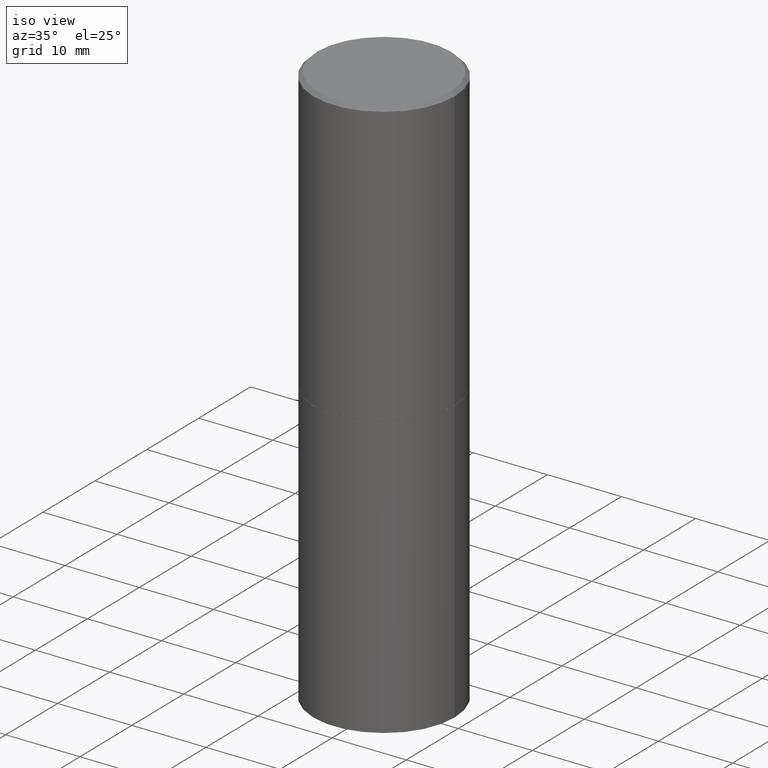
[diagram: clean part render]
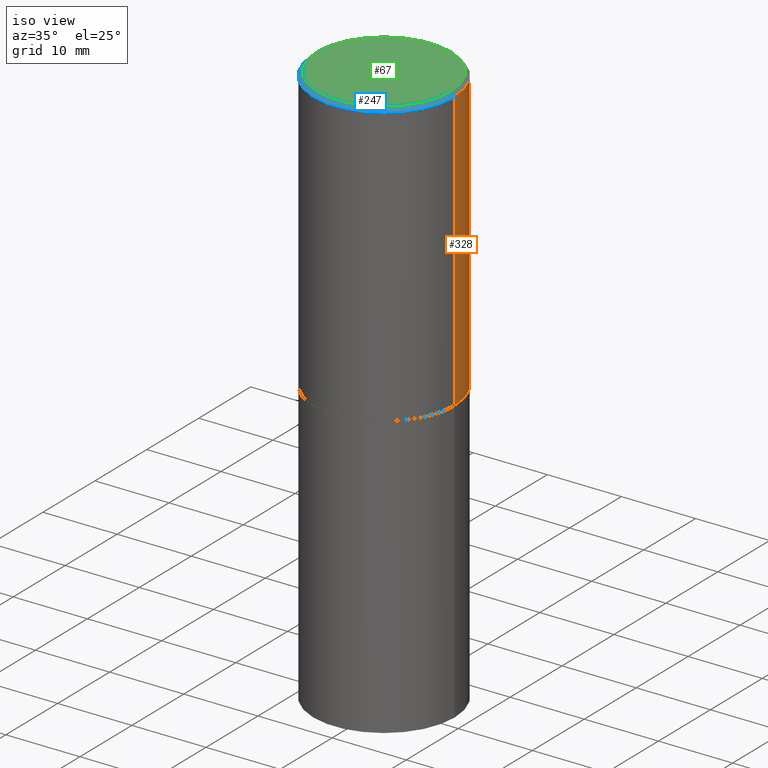
[diagram: same view with three faces highlighted in distinct colors, each labeled with its STEP entity id]
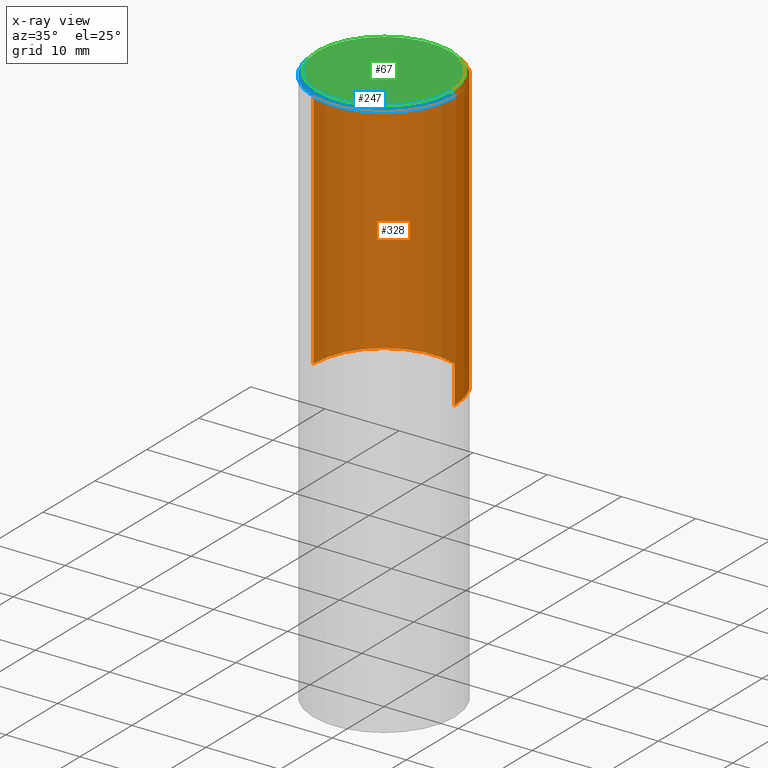
[diagram: x-ray of the same camera — body ghosted, the three highlighted faces saturated]
A machine part, iso view with three faces highlighted in distinct colors.
The next image is the same camera in x-ray (body ghosted, the three faces saturated) — at least one of them is partly hidden behind the body in this view.
Their STEP definitions:

[orange] entity #328 — the highlighted cylindrical surface (partial cylindrical patch) has radius 9.525 mm, axis along (-0, 0, 1).
#4 = DIRECTION ( 'NONE',  ( -2.445468806185136597E-29, 3.491481338843145583E-15, 1.000000000000000000 ) ) ;
#7 = VECTOR ( 'NONE', #297, 39.37007874015748143 ) ;
#10 = DIRECTION ( 'NONE',  ( 1.000000000000000000, -6.982962677686266711E-15, 4.876176775795935793E-29 ) ) ;
#30 = FACE_OUTER_BOUND ( 'NONE', #344, .T. ) ;
#31 = CIRCLE ( 'NONE', #276, 0.3749999999999998335 ) ;
#48 = EDGE_CURVE ( 'NONE', #176, #369, #245, .T. ) ;
#57 = ORIENTED_EDGE ( 'NONE', *, *, #58, .F. ) ;
#58 = EDGE_CURVE ( 'NONE', #104, #389, #31, .T. ) ;
#60 = CARTESIAN_POINT ( 'NONE',  ( -0.3749999999999999445, 2.664535259100375303E-15, -1.844600658845589318E-29 ) ) ;
#82 = ORIENTED_EDGE ( 'NONE', *, *, #48, .T. ) ;
#84 = DIRECTION ( 'NONE',  ( -2.445468806185136597E-29, 3.491481338843145583E-15, 1.000000000000000000 ) ) ;
#98 = LINE ( 'NONE', #246, #289 ) ;
#104 = VERTEX_POINT ( 'NONE', #143 ) ;
#128 = DIRECTION ( 'NONE',  ( -2.445468806185136877E-29, 3.491481338843145188E-15, 1.000000000000000000 ) ) ;
#143 = CARTESIAN_POINT ( 'NONE',  ( 0.3749999999999998335, -2.642516375941186056E-15, -0.02000000000000003164 ) ) ;
#160 = CYLINDRICAL_SURFACE ( 'NONE', #373, 0.3749999999999999445 ) ;
#161 = CARTESIAN_POINT ( 'NONE',  ( -0.3749999999999998335, 2.548781377355485929E-15, -0.02000000000000003164 ) ) ;
#176 = VERTEX_POINT ( 'NONE', #312 ) ;
#182 = EDGE_CURVE ( 'NONE', #369, #389, #282, .T. ) ;
#213 = CARTESIAN_POINT ( 'NONE',  ( -0.3750000000000000555, 5.946793638263273286E-18, -1.502900000000000347 ) ) ;
#237 = ORIENTED_EDGE ( 'NONE', *, *, #350, .F. ) ;
#245 = CIRCLE ( 'NONE', #281, 0.3750000000000000555 ) ;
#246 = CARTESIAN_POINT ( 'NONE',  ( 0.3749999999999999445, -2.618611004132349622E-15, 1.828566290923475642E-29 ) ) ;
#251 = CARTESIAN_POINT ( 'NONE',  ( 4.890937612370280165E-31, -6.982962677686301470E-17, -0.02000000000000003164 ) ) ;
#265 = ORIENTED_EDGE ( 'NONE', *, *, #182, .T. ) ;
#272 = CARTESIAN_POINT ( 'NONE',  ( 0.000000000000000000, 0.000000000000000000, 0.000000000000000000 ) ) ;
#276 = AXIS2_PLACEMENT_3D ( 'NONE', #251, #347, #285 ) ;
#281 = AXIS2_PLACEMENT_3D ( 'NONE', #354, #84, #321 ) ;
#282 = LINE ( 'NONE', #60, #7 ) ;
#285 = DIRECTION ( 'NONE',  ( 1.000000000000000000, -6.982962677686265922E-15, 0.000000000000000000 ) ) ;
#289 = VECTOR ( 'NONE', #128, 39.37007874015748143 ) ;
#297 = DIRECTION ( 'NONE',  ( -2.445468806185136877E-29, 3.491481338843145188E-15, 1.000000000000000000 ) ) ;
#312 = CARTESIAN_POINT ( 'NONE',  ( 0.3750000000000000555, -7.865958308279712914E-15, -1.502900000000000347 ) ) ;
#321 = DIRECTION ( 'NONE',  ( 1.000000000000000000, -6.982962677686264344E-15, 0.000000000000000000 ) ) ;
#328 = ADVANCED_FACE ( 'NONE', ( #30 ), #160, .T. ) ;
#344 = EDGE_LOOP ( 'NONE', ( #82, #265, #57, #237 ) ) ;
#347 = DIRECTION ( 'NONE',  ( -2.445468806185136597E-29, 3.491481338843145583E-15, 1.000000000000000000 ) ) ;
#350 = EDGE_CURVE ( 'NONE', #176, #104, #98, .T. ) ;
#354 = CARTESIAN_POINT ( 'NONE',  ( 3.675295068815642359E-29, -5.247347304147363686E-15, -1.502900000000000347 ) ) ;
#369 = VERTEX_POINT ( 'NONE', #213 ) ;
#373 = AXIS2_PLACEMENT_3D ( 'NONE', #272, #4, #10 ) ;
#389 = VERTEX_POINT ( 'NONE', #161 ) ;

[blue] entity #247 — the highlighted conical surface has half-angle 45 deg.
#24 = CIRCLE ( 'NONE', #64, 0.3749999999999998335 ) ;
#25 = DIRECTION ( 'NONE',  ( -0.7071067811865467956, 2.468850131082249172E-15, -0.7071067811865482389 ) ) ;
#44 = VECTOR ( 'NONE', #137, 39.37007874015748143 ) ;
#55 = ORIENTED_EDGE ( 'NONE', *, *, #188, .T. ) ;
#59 = EDGE_LOOP ( 'NONE', ( #100, #358, #360, #55 ) ) ;
#64 = AXIS2_PLACEMENT_3D ( 'NONE', #94, #390, #361 ) ;
#89 = DIRECTION ( 'NONE',  ( 2.445468806185136597E-29, -3.491481338843145583E-15, -1.000000000000000000 ) ) ;
#94 = CARTESIAN_POINT ( 'NONE',  ( 4.890937612370280165E-31, -6.982962677686301470E-17, -0.02000000000000003164 ) ) ;
#97 = CONICAL_SURFACE ( 'NONE', #110, 0.3749999999999998335, 0.7853981633974472798 ) ;
#100 = ORIENTED_EDGE ( 'NONE', *, *, #152, .F. ) ;
#104 = VERTEX_POINT ( 'NONE', #143 ) ;
#110 = AXIS2_PLACEMENT_3D ( 'NONE', #331, #89, #266 ) ;
#121 = LINE ( 'NONE', #125, #173 ) ;
#125 = CARTESIAN_POINT ( 'NONE',  ( -0.3749999999999998335, 2.548781377355485929E-15, -0.02000000000000003164 ) ) ;
#126 = FACE_OUTER_BOUND ( 'NONE', #59, .T. ) ;
#134 = CARTESIAN_POINT ( 'NONE',  ( 0.3749999999999998335, -2.642516375941186056E-15, -0.02000000000000003164 ) ) ;
#137 = DIRECTION ( 'NONE',  ( 0.7071067811865467956, -7.319954787623254468E-15, -0.7071067811865482389 ) ) ;
#138 = CIRCLE ( 'NONE', #314, 0.3549999999999998157 ) ;
#143 = CARTESIAN_POINT ( 'NONE',  ( 0.3749999999999998335, -2.642516375941186056E-15, -0.02000000000000003164 ) ) ;
#152 = EDGE_CURVE ( 'NONE', #232, #104, #310, .T. ) ;
#161 = CARTESIAN_POINT ( 'NONE',  ( -0.3749999999999998335, 2.548781377355485929E-15, -0.02000000000000003164 ) ) ;
#173 = VECTOR ( 'NONE', #25, 39.37007874015748143 ) ;
#185 = DIRECTION ( 'NONE',  ( -2.445468806185136597E-29, 3.491481338843145583E-15, 1.000000000000000000 ) ) ;
#188 = EDGE_CURVE ( 'NONE', #389, #104, #24, .T. ) ;
#207 = EDGE_CURVE ( 'NONE', #353, #389, #121, .T. ) ;
#216 = CARTESIAN_POINT ( 'NONE',  ( -1.043851414335219820E-46, 1.490343170380447200E-32, 4.268512490100411279E-18 ) ) ;
#232 = VERTEX_POINT ( 'NONE', #359 ) ;
#247 = ADVANCED_FACE ( 'NONE', ( #126 ), #97, .T. ) ;
#248 = CARTESIAN_POINT ( 'NONE',  ( -0.3549999999999998157, 2.513866563967054675E-15, 4.268512490082953109E-18 ) ) ;
#266 = DIRECTION ( 'NONE',  ( -1.000000000000000000, 6.982962677686265922E-15, 0.000000000000000000 ) ) ;
#303 = DIRECTION ( 'NONE',  ( 1.000000000000000000, -6.982962677686266711E-15, 4.876231632511990425E-29 ) ) ;
#310 = LINE ( 'NONE', #134, #44 ) ;
#314 = AXIS2_PLACEMENT_3D ( 'NONE', #216, #185, #303 ) ;
#331 = CARTESIAN_POINT ( 'NONE',  ( 4.890937612370280165E-31, -6.982962677686301470E-17, -0.02000000000000003164 ) ) ;
#353 = VERTEX_POINT ( 'NONE', #248 ) ;
#358 = ORIENTED_EDGE ( 'NONE', *, *, #387, .F. ) ;
#359 = CARTESIAN_POINT ( 'NONE',  ( 0.3549999999999998157, -2.538996582575039076E-15, 4.268512490117958041E-18 ) ) ;
#360 = ORIENTED_EDGE ( 'NONE', *, *, #207, .T. ) ;
#361 = DIRECTION ( 'NONE',  ( 1.000000000000000000, -6.982962677686265922E-15, 0.000000000000000000 ) ) ;
#387 = EDGE_CURVE ( 'NONE', #353, #232, #138, .T. ) ;
#389 = VERTEX_POINT ( 'NONE', #161 ) ;
#390 = DIRECTION ( 'NONE',  ( -2.445468806185136597E-29, 3.491481338843145583E-15, 1.000000000000000000 ) ) ;

[green] entity #67 — the highlighted planar face has unit normal (0, -0, -1).
#13 = AXIS2_PLACEMENT_3D ( 'NONE', #34, #295, #362 ) ;
#34 = CARTESIAN_POINT ( 'NONE',  ( -1.043851414335219820E-46, 1.490343170380447200E-32, 4.268512490100411279E-18 ) ) ;
#67 = ADVANCED_FACE ( 'NONE', ( #255 ), #227, .F. ) ;
#78 = DIRECTION ( 'NONE',  ( 2.438088387897960049E-29, -3.491481338843145188E-15, -1.000000000000000000 ) ) ;
#92 = CIRCLE ( 'NONE', #13, 0.3549999999999998157 ) ;
#138 = CIRCLE ( 'NONE', #314, 0.3549999999999998157 ) ;
#147 = AXIS2_PLACEMENT_3D ( 'NONE', #349, #78, #283 ) ;
#185 = DIRECTION ( 'NONE',  ( -2.445468806185136597E-29, 3.491481338843145583E-15, 1.000000000000000000 ) ) ;
#216 = CARTESIAN_POINT ( 'NONE',  ( -1.043851414335219820E-46, 1.490343170380447200E-32, 4.268512490100411279E-18 ) ) ;
#227 = PLANE ( 'NONE',  #147 ) ;
#232 = VERTEX_POINT ( 'NONE', #359 ) ;
#241 = EDGE_CURVE ( 'NONE', #232, #353, #92, .T. ) ;
#248 = CARTESIAN_POINT ( 'NONE',  ( -0.3549999999999998157, 2.513866563967054675E-15, 4.268512490082953109E-18 ) ) ;
#255 = FACE_OUTER_BOUND ( 'NONE', #322, .T. ) ;
#283 = DIRECTION ( 'NONE',  ( -1.000000000000000000, 6.982962677686265922E-15, -4.876176775795935793E-29 ) ) ;
#292 = ORIENTED_EDGE ( 'NONE', *, *, #241, .T. ) ;
#295 = DIRECTION ( 'NONE',  ( -2.445468806185136597E-29, 3.491481338843145583E-15, 1.000000000000000000 ) ) ;
#303 = DIRECTION ( 'NONE',  ( 1.000000000000000000, -6.982962677686266711E-15, 4.876231632511990425E-29 ) ) ;
#314 = AXIS2_PLACEMENT_3D ( 'NONE', #216, #185, #303 ) ;
#317 = ORIENTED_EDGE ( 'NONE', *, *, #387, .T. ) ;
#322 = EDGE_LOOP ( 'NONE', ( #317, #292 ) ) ;
#349 = CARTESIAN_POINT ( 'NONE',  ( 2.478951750578623420E-15, 0.3549999999999998157, -1.237341619044265835E-15 ) ) ;
#353 = VERTEX_POINT ( 'NONE', #248 ) ;
#359 = CARTESIAN_POINT ( 'NONE',  ( 0.3549999999999998157, -2.538996582575039076E-15, 4.268512490117958041E-18 ) ) ;
#362 = DIRECTION ( 'NONE',  ( 1.000000000000000000, -6.982962677686266711E-15, 4.876231632511990425E-29 ) ) ;
#387 = EDGE_CURVE ( 'NONE', #353, #232, #138, .T. ) ;